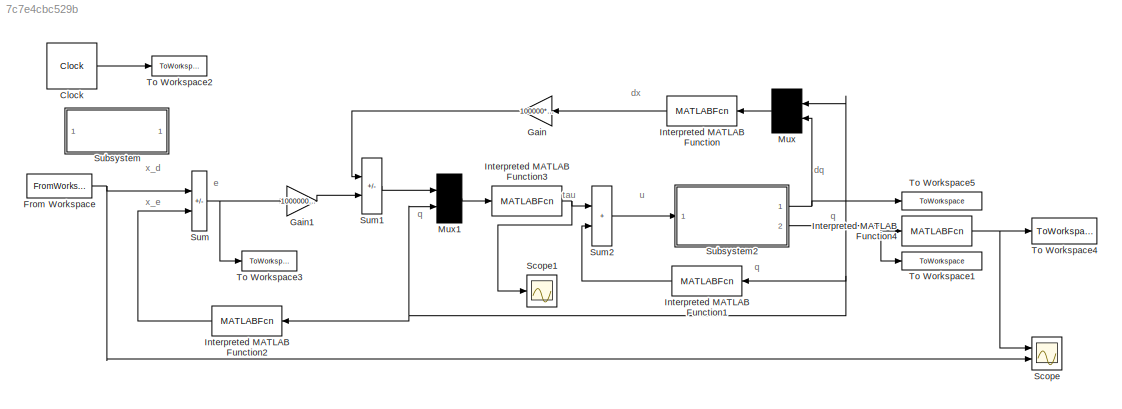
MODEL slx_7c7e4cbc529b
KIND model
CONFIG AbsTol = auto
CONFIG EnableMultiTasking = off
CONFIG FixedStep = auto
CONFIG MaxStep = auto
CONFIG MinStep = auto
CONFIG RelTol = 1e-3
CONFIG SampleTimeConstraint = Unconstrained
CONFIG Solver = VariableStepAuto
CONFIG SolverName = VariableStepAuto
CONFIG StartTime = 0.0
CONFIG StopTime = T(end)
BLOCK [Clock] Clock
  DisplayTime = on
BLOCK [FromWorkspace] From Workspace
  SampleTime = T_step
  VariableName = [T,x_d]
BLOCK [Gain] Gain
  Gain = 100000*eye(3);
  Multiplication = Matrix(K*u)
  NameLocation = top
BLOCK [Gain] Gain1
  Gain = 100000000*eye(3)
  Multiplication = Matrix(K*u)
BLOCK [MATLABFcn] Interpreted MATLAB Function
  MATLABFcn = Jadq(u)
  NameLocation = top
  OutputDimensions = 3
  Ports = [1, 1]
BLOCK [MATLABFcn] Interpreted MATLAB Function1
  MATLABFcn = G_q(u)
  NameLocation = top
  OutputDimensions = NLinks
  Ports = [1, 1]
BLOCK [MATLABFcn] Interpreted MATLAB Function2
  MATLABFcn = fwdkin(u)
  NameLocation = top
  OutputDimensions = 3
  Ports = [1, 1]
BLOCK [MATLABFcn] Interpreted MATLAB Function3
  MATLABFcn = Jtrans(u)
  OutputDimensions = NLinks
  Ports = [1, 1]
BLOCK [MATLABFcn] Interpreted MATLAB Function4
  MATLABFcn = fwdkin(u)
  OutputDimensions = 3
  Ports = [1, 1]
BLOCK [Mux] Mux
  Inputs = [NLinks,NLinks]
  NameLocation = top
  Ports = [2, 1]
BLOCK [Mux] Mux1
  Inputs = [3,NLinks]
  Ports = [2, 1]
BLOCK [Scope] Scope
  Floating = off
  NumInputPorts = 2
  Ports = [2]
  ScopeSpecificationString = Simulink.scopes.TimeScopeBlockCfg('CurrentConfiguration', extmgr.ConfigurationSet(extmgr.Configuration('Core','General UI',true),extmgr.Configuration('Core','Source UI',true),extmgr.Configuration('Sources','WiredSimulink',true),extmgr.Configuration('Visuals','Time Domain',true,'SerializedDisplays',{struct('MinYLimReal','-0.76262','MaxYLimReal','0.86251','YLabelReal','','MinYLimMag','0.00000','MaxY...<+1527ch>
BLOCK [Scope] Scope1
  Floating = off
  NumInputPorts = 1
  Ports = [1]
  ScopeSpecificationString = Simulink.scopes.TimeScopeBlockCfg('CurrentConfiguration', extmgr.ConfigurationSet(extmgr.Configuration('Core','General UI',true),extmgr.Configuration('Core','Source UI',true),extmgr.Configuration('Sources','WiredSimulink',true,'DataLoggingVariableName','ScopeData1'),extmgr.Configuration('Visuals','Time Domain',true,'SerializedDisplays',{struct('MinYLimReal','-5514.87452','MaxYLimReal','8976.21217'...<+1444ch>
BLOCK [SubSystem] Subsystem
  Ports = []
  RequestExecContextInheritance = off
  StartFcn = global NLinks DoF
  StopFcn = SimPlotsPDG
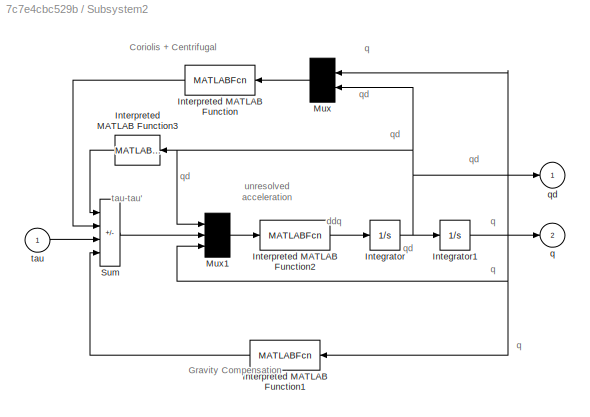
BLOCK [SubSystem] Subsystem2
  Ports = [1, 2]
  RequestExecContextInheritance = off
BLOCK [Integrator] Subsystem2/Integrator
  Ports = [1, 1]
BLOCK [Integrator] Subsystem2/Integrator1
  InitialCondition = q0
  Ports = [1, 1]
BLOCK [MATLABFcn] Subsystem2/Interpreted MATLAB Function
  MATLABFcn = C_q(u)
  NameLocation = top
  Output1D = off
  OutputDimensions = NLinks
  Ports = [1, 1]
BLOCK [MATLABFcn] Subsystem2/Interpreted MATLAB Function1
  MATLABFcn = G_q(u)
  NameLocation = top
  OutputDimensions = NLinks
  Ports = [1, 1]
BLOCK [MATLABFcn] Subsystem2/Interpreted MATLAB Function2
  MATLABFcn = B_accel(u)
  OutputDimensions = NLinks
  Ports = [1, 1]
BLOCK [MATLABFcn] Subsystem2/Interpreted MATLAB Function3
  MATLABFcn = Fv_dq(u)
  NameLocation = top
  OutputDimensions = NLinks
  Ports = [1, 1]
BLOCK [Mux] Subsystem2/Mux
  Inputs = [NLinks,NLinks]
  NameLocation = top
  Ports = [2, 1]
BLOCK [Mux] Subsystem2/Mux1
  Inputs = [NLinks,NLinks,NLinks]
  Ports = [3, 1]
BLOCK [Sum] Subsystem2/Sum
  IconShape = rectangular
  Inputs = --+-
  Ports = [4, 1]
BLOCK [Outport] Subsystem2/q
  Port = 2
BLOCK [Outport] Subsystem2/qd
BLOCK [Inport] Subsystem2/tau
BLOCK [Sum] Sum
  IconShape = rectangular
  Inputs = +-
  Ports = [2, 1]
BLOCK [Sum] Sum1
  IconShape = rectangular
  Inputs = -+
  Ports = [2, 1]
BLOCK [Sum] Sum2
  IconShape = rectangular
  Ports = [2, 1]
BLOCK [ToWorkspace] To Workspace1
  MaxDataPoints = 4001
  Ports = [1]
  SampleTime = T_step
  VariableName = q_out
BLOCK [ToWorkspace] To Workspace2
  FixptAsFi = on
  MaxDataPoints = 4001
  Ports = [1]
  SampleTime = -1
  VariableName = time
BLOCK [ToWorkspace] To Workspace3
  FixptAsFi = on
  MaxDataPoints = 4001
  Ports = [1]
  SampleTime = T_step
  VariableName = err
BLOCK [ToWorkspace] To Workspace4
  FixptAsFi = on
  MaxDataPoints = 4001
  Ports = [1]
  SampleTime = T_step
  VariableName = x_out
BLOCK [ToWorkspace] To Workspace5
  MaxDataPoints = 4001
  Ports = [1]
  SampleTime = T_step
  VariableName = qd_out
ANNOTATION (root): dq
ANNOTATION (root): dx
ANNOTATION (root): e
ANNOTATION (root): q
ANNOTATION (root): tau
ANNOTATION (root): u
ANNOTATION (root): x_d
ANNOTATION (root): x_e
ANNOTATION Subsystem2: Coriolis + Centrifugal
ANNOTATION Subsystem2: Gravity Compensation
ANNOTATION Subsystem2: ddq
ANNOTATION Subsystem2: q
ANNOTATION Subsystem2: qd
ANNOTATION Subsystem2: tau-tau'
ANNOTATION Subsystem2: unresolved acceleration
LINE Clock:1 -> To Workspace2:1
NET From Workspace:1 -> Scope:2, Sum:1
LINE Gain1:1 -> Sum1:2
LINE Gain:1 -> Sum1:1
LINE Interpreted MATLAB Function1:1 -> Sum2:2
LINE Interpreted MATLAB Function2:1 -> Sum:2
NET Interpreted MATLAB Function3:1 -> Scope1:1, Sum2:1
NET Interpreted MATLAB Function4:1 -> Scope:1, To Workspace4:1
LINE Interpreted MATLAB Function:1 -> Gain:1
LINE Mux1:1 -> Interpreted MATLAB Function3:1
LINE Mux:1 -> Interpreted MATLAB Function:1
NET Subsystem2/Integrator1:1 -> Subsystem2/Interpreted MATLAB Function1:1, Subsystem2/Mux1:3, Subsystem2/Mux:1, Subsystem2/q:1
NET Subsystem2/Integrator:1 -> Subsystem2/Integrator1:1, Subsystem2/Interpreted MATLAB Function3:1, Subsystem2/Mux1:1, Subsystem2/Mux:2, Subsystem2/qd:1
LINE Subsystem2/Interpreted MATLAB Function1:1 -> Subsystem2/Sum:4
LINE Subsystem2/Interpreted MATLAB Function2:1 -> Subsystem2/Integrator:1
LINE Subsystem2/Interpreted MATLAB Function3:1 -> Subsystem2/Sum:1
LINE Subsystem2/Interpreted MATLAB Function:1 -> Subsystem2/Sum:2
LINE Subsystem2/Mux1:1 -> Subsystem2/Interpreted MATLAB Function2:1
LINE Subsystem2/Mux:1 -> Subsystem2/Interpreted MATLAB Function:1
LINE Subsystem2/Sum:1 -> Subsystem2/Mux1:2
LINE Subsystem2/tau:1 -> Subsystem2/Sum:3
NET Subsystem2:1 -> Mux:2, To Workspace5:1
NET Subsystem2:2 -> Interpreted MATLAB Function1:1, Interpreted MATLAB Function2:1, Interpreted MATLAB Function4:1, Mux1:2, Mux:1, To Workspace1:1
LINE Sum1:1 -> Mux1:1
LINE Sum2:1 -> Subsystem2:1
NET Sum:1 -> Gain1:1, To Workspace3:1
note: NET lines group one-source signal fan-out (src -> all destinations, sorted); 1:1 wires keep LINE
